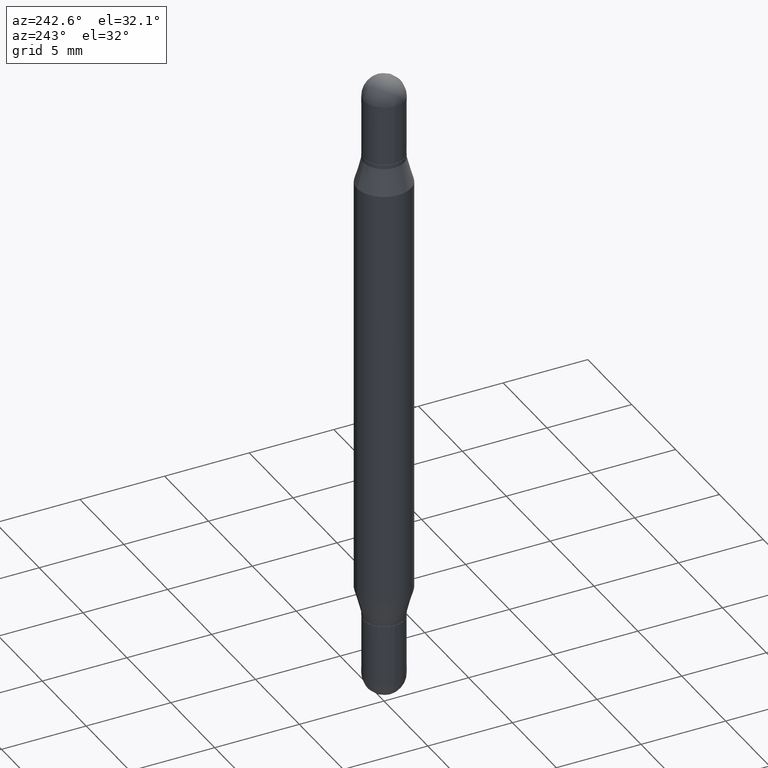
[diagram: clean part render]
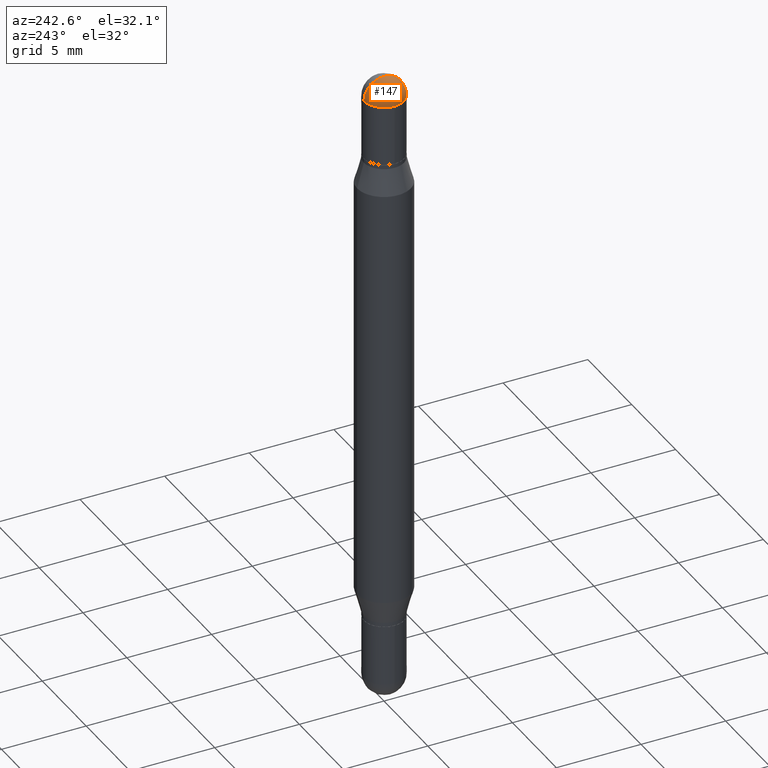
[diagram: same view with one face highlighted and labeled with its STEP entity id]
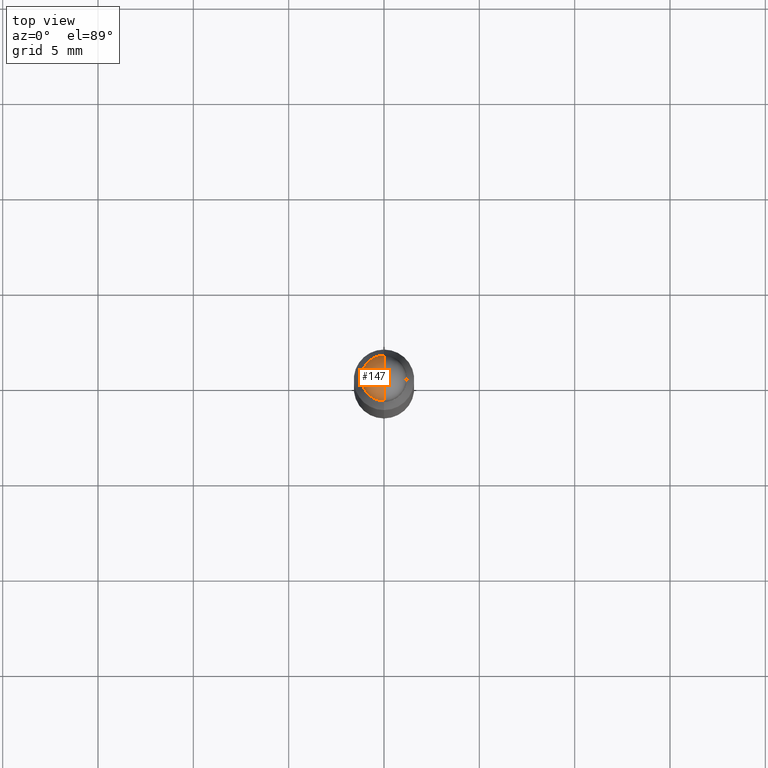
[diagram: same view with one face highlighted and labeled with its STEP entity id]
A machine part, auxiliary view. The second image highlights one B-rep face of the part: STEP entity #147.
A second angle (top view) of the same face is appended — the face is thin or edge-on in the first view.
In plain terms, the highlighted spherical surface has radius 1.1913 mm.
Its self-contained STEP definition (entity closure, byte-faithful):
#23 = AXIS2_PLACEMENT_3D ( 'NONE', #565, #1098, #299 ) ;
#123 = DIRECTION ( 'NONE',  ( 2.445468806185136597E-29, 3.479614466977828254E-15, 1.000000000000000000 ) ) ;
#146 = DIRECTION ( 'NONE',  ( -6.860497997771530774E-15, -1.000000000000000000, 0.000000000000000000 ) ) ;
#147 = ADVANCED_FACE ( 'NONE', ( #468 ), #1061, .T. ) ;
#159 = DIRECTION ( 'NONE',  ( -1.000000000000000000, 6.860497997771530774E-15, 5.827999781331232286E-31 ) ) ;
#166 = VERTEX_POINT ( 'NONE', #896 ) ;
#208 = DIRECTION ( 'NONE',  ( -6.982962677686265922E-15, -1.000000000000000000, 3.458496260635717735E-15 ) ) ;
#243 = VERTEX_POINT ( 'NONE', #566 ) ;
#281 = CARTESIAN_POINT ( 'NONE',  ( 3.553510722267622201E-29, -1.720940724002502970E-16, -0.04690000000000053154 ) ) ;
#286 = CARTESIAN_POINT ( 'NONE',  ( 3.549499992371371099E-29, -1.778376658882507705E-16, -0.04690000000000025399 ) ) ;
#299 = DIRECTION ( 'NONE',  ( 1.000000000000000000, -6.982962677686266711E-15, 0.000000000000000000 ) ) ;
#325 = EDGE_CURVE ( 'NONE', #491, #166, #685, .T. ) ;
#382 = CIRCLE ( 'NONE', #1049, 0.04690000000000013602 ) ;
#388 = CARTESIAN_POINT ( 'NONE',  ( 3.549499992371371099E-29, -1.778376658882507705E-16, -0.04690000000000025399 ) ) ;
#402 = EDGE_CURVE ( 'NONE', #480, #243, #382, .T. ) ;
#427 = CARTESIAN_POINT ( 'NONE',  ( 3.662187114433328241E-29, -1.751554413099070675E-17, -1.195183497228115035E-16 ) ) ;
#460 = DIRECTION ( 'NONE',  ( 1.000000000000000000, -6.982962677686266711E-15, 0.000000000000000000 ) ) ;
#468 = FACE_OUTER_BOUND ( 'NONE', #865, .T. ) ;
#469 = ORIENTED_EDGE ( 'NONE', *, *, #325, .T. ) ;
#475 = AXIS2_PLACEMENT_3D ( 'NONE', #672, #159, #146 ) ;
#480 = VERTEX_POINT ( 'NONE', #427 ) ;
#491 = VERTEX_POINT ( 'NONE', #792 ) ;
#549 = AXIS2_PLACEMENT_3D ( 'NONE', #281, #123, #460 ) ;
#565 = CARTESIAN_POINT ( 'NONE',  ( 3.553510722267622201E-29, -1.720940724002502970E-16, -0.04690000000000053154 ) ) ;
#566 = CARTESIAN_POINT ( 'NONE',  ( -3.275009495834508474E-16, -0.04690000000000024011, -0.04690000000000036501 ) ) ;
#637 = DIRECTION ( 'NONE',  ( -1.000000000000000000, 6.982962677686265922E-15, 1.566701062079987781E-31 ) ) ;
#665 = CIRCLE ( 'NONE', #23, 0.04689999999999999725 ) ;
#672 = CARTESIAN_POINT ( 'NONE',  ( 3.549499992371371099E-29, -1.778376658882507705E-16, -0.04690000000000025399 ) ) ;
#685 = CIRCLE ( 'NONE', #549, 0.04689999999999999725 ) ;
#713 = AXIS2_PLACEMENT_3D ( 'NONE', #286, #637, #208 ) ;
#761 = DIRECTION ( 'NONE',  ( 1.000000000000000000, -6.982962677686265922E-15, -1.566701062080016245E-31 ) ) ;
#792 = CARTESIAN_POINT ( 'NONE',  ( 3.217573560955207797E-16, 0.04689999999999990010, -0.04690000000000069114 ) ) ;
#808 = CIRCLE ( 'NONE', #475, 0.04690000000000013602 ) ;
#851 = EDGE_CURVE ( 'NONE', #166, #243, #665, .T. ) ;
#865 = EDGE_LOOP ( 'NONE', ( #878, #1113, #469, #1029 ) ) ;
#878 = ORIENTED_EDGE ( 'NONE', *, *, #402, .F. ) ;
#896 = CARTESIAN_POINT ( 'NONE',  ( -0.04689999999999999725, -9.408370971656128076E-17, -0.04690000000000053154 ) ) ;
#908 = EDGE_CURVE ( 'NONE', #480, #491, #808, .T. ) ;
#935 = DIRECTION ( 'NONE',  ( 6.982962677686265133E-15, 1.000000000000000000, 0.000000000000000000 ) ) ;
#1029 = ORIENTED_EDGE ( 'NONE', *, *, #851, .T. ) ;
#1049 = AXIS2_PLACEMENT_3D ( 'NONE', #388, #761, #935 ) ;
#1061 = SPHERICAL_SURFACE ( 'NONE', #713, 0.04690000000000013602 ) ;
#1098 = DIRECTION ( 'NONE',  ( 2.445468806185136597E-29, 3.479614466977828254E-15, 1.000000000000000000 ) ) ;
#1113 = ORIENTED_EDGE ( 'NONE', *, *, #908, .T. ) ;